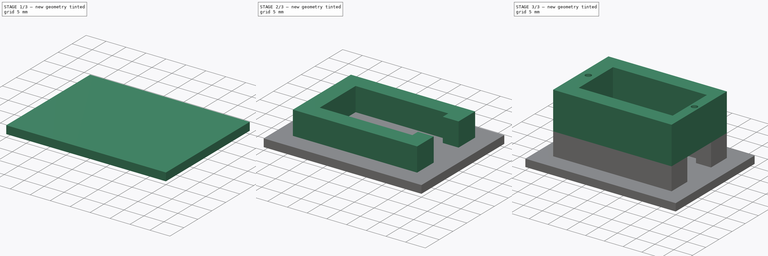
[diagram: build sequence overview — one tinted view per stage of 3, left to right]
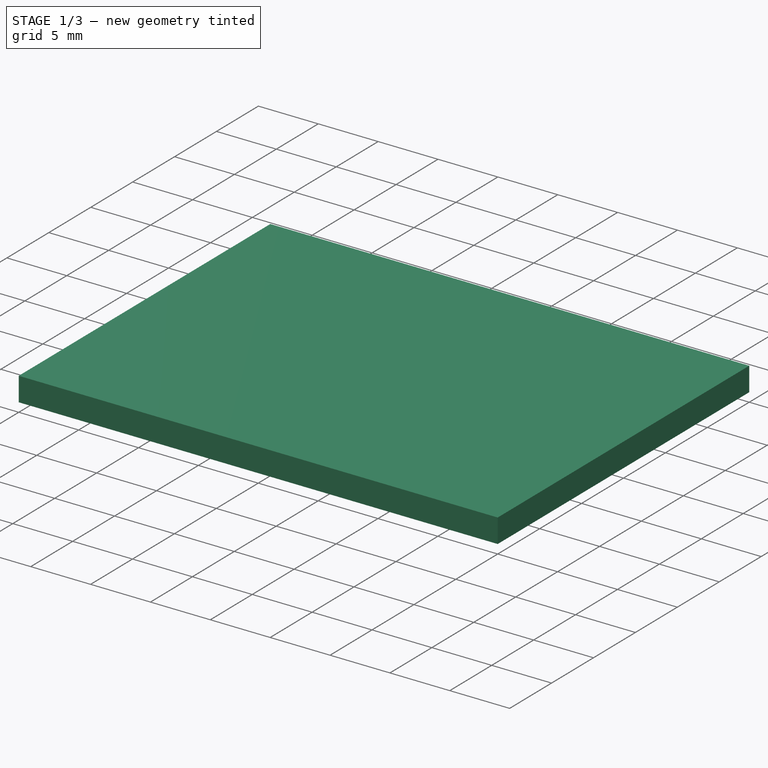
[diagram: stage 1 of 3 — iso view after this stage's code; geometry added in this stage tinted green]
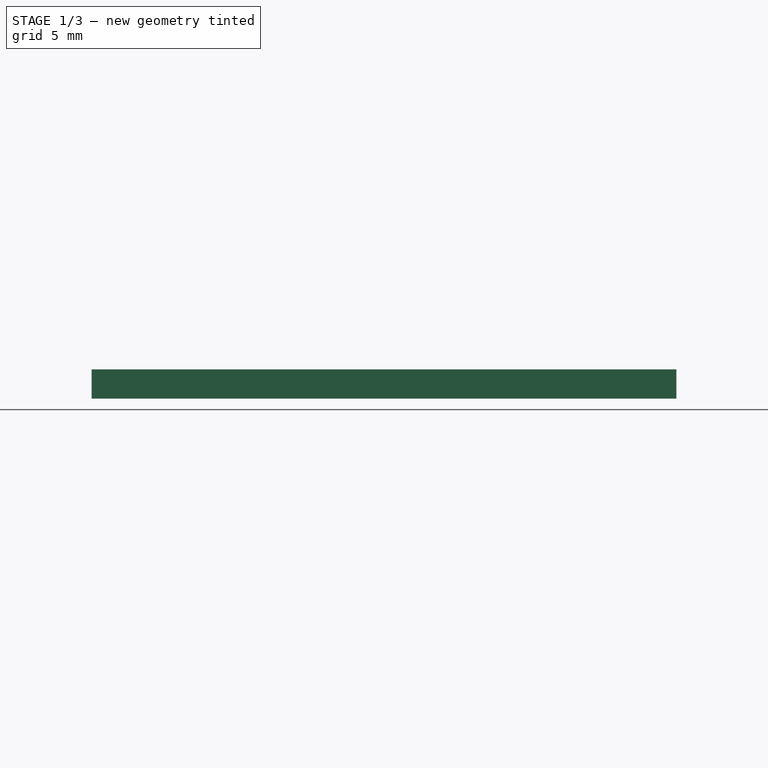
[diagram: stage 1 of 3 — front view after this stage's code; geometry added in this stage tinted green]
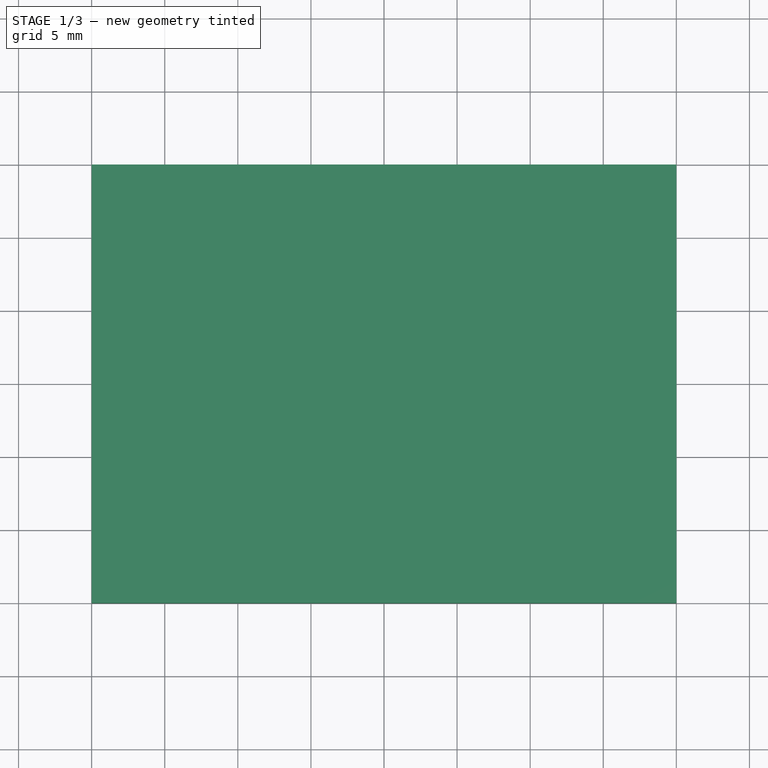
[diagram: stage 1 of 3 — top view after this stage's code; geometry added in this stage tinted green]
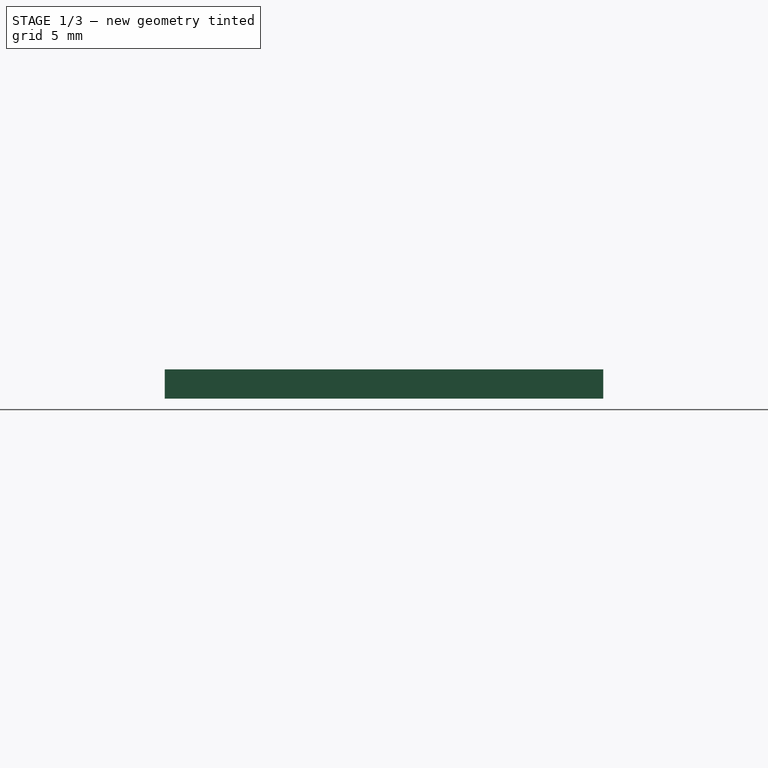
[diagram: stage 1 of 3 — right view after this stage's code; geometry added in this stage tinted green]
FCSTD DOCUMENT  (FreeCAD 0.17R13541 (Git))
Label: ServoMountCopy
License: All rights reserved
LicenseURL: http://en.wikipedia.org/wiki/All_rights_reserved
objects: Sketcher::SketchObject×3, PartDesign::Pad×2, Part::Box×1, PartDesign::FeatureBase×1, PartDesign::Pocket×1, PartDesign::Body×1
note: 12 computed .brp shape members not serialized (recipe doc carries the construction recipe); baked Part::Feature solids carry a one-line shape summary decoded from their .brp

FEATURE [Part::Box] Box  label="Cube"
  AttacherType = Attacher::AttachEngine3D
  Height = 2
  Length = 40
  Width = 30
FEATURE [PartDesign::FeatureBase] BaseFeature
  BaseFeature = -> Box
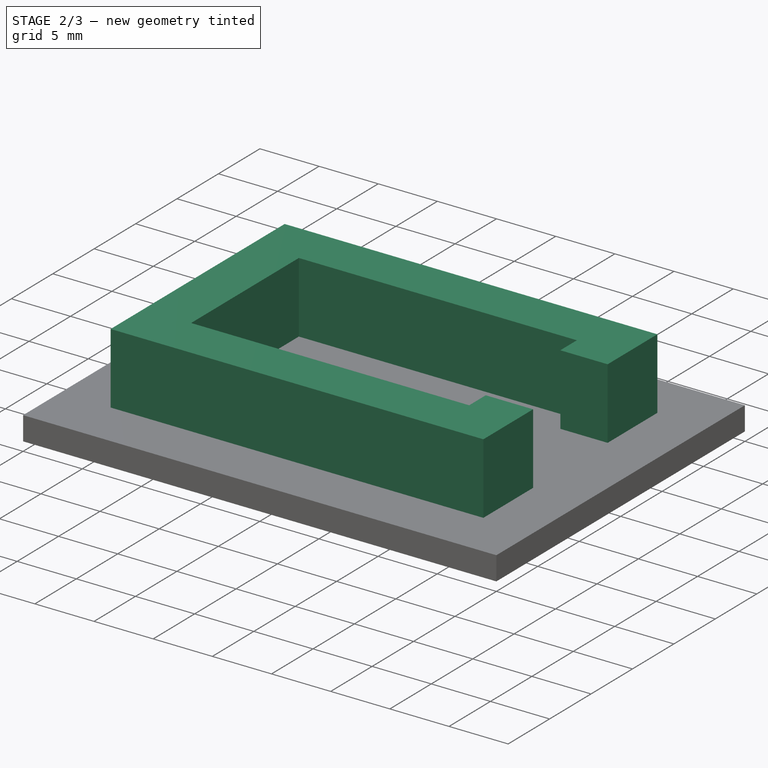
[diagram: stage 2 of 3 — iso view after this stage's code; geometry added in this stage tinted green]
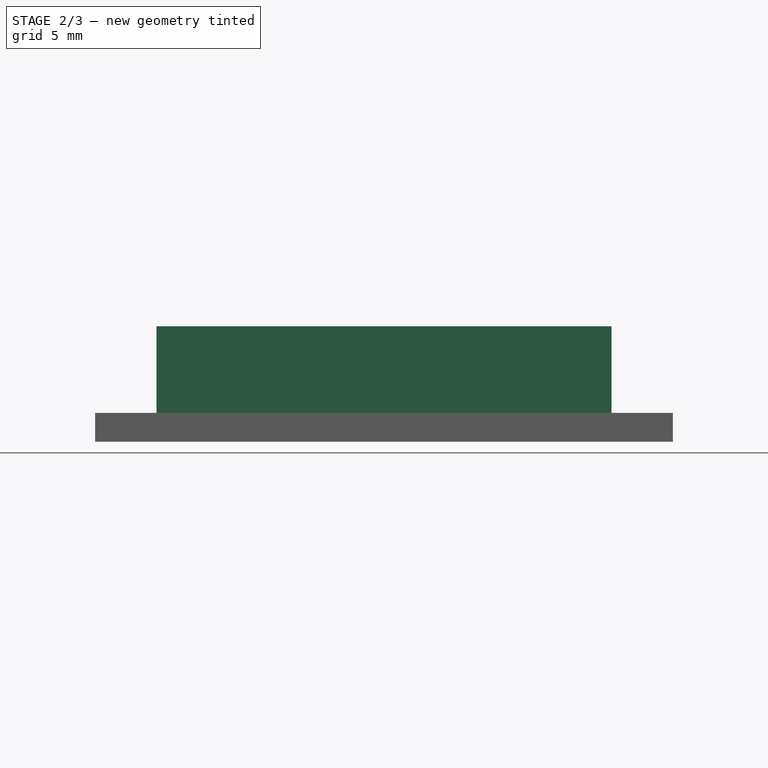
[diagram: stage 2 of 3 — front view after this stage's code; geometry added in this stage tinted green]
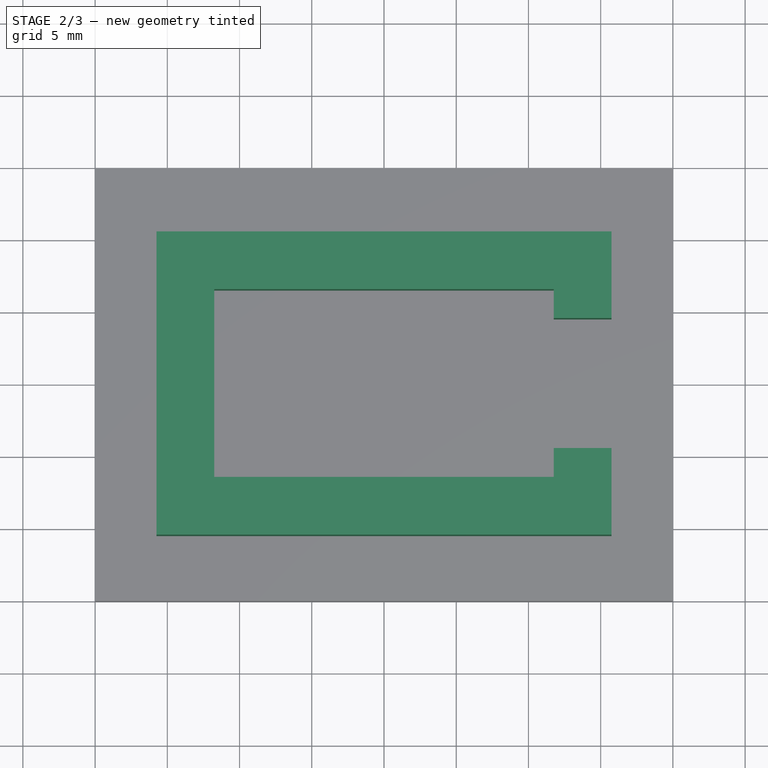
[diagram: stage 2 of 3 — top view after this stage's code; geometry added in this stage tinted green]
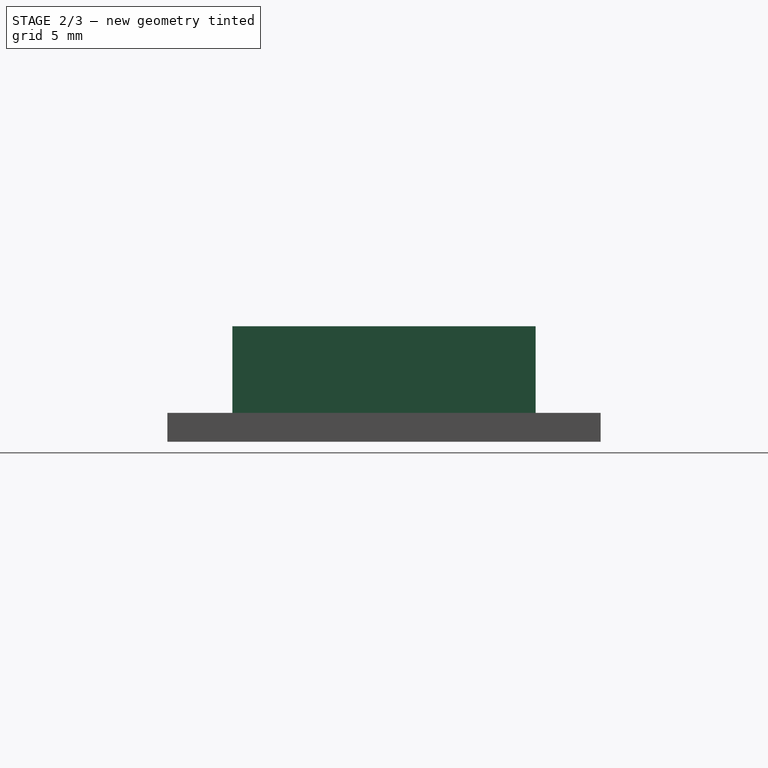
[diagram: stage 2 of 3 — right view after this stage's code; geometry added in this stage tinted green]
FEATURE [Sketcher::SketchObject] Sketch
  ExternalGeometry = -> [BaseFeature]
  MapMode = 5
  Placement = pos=(0,0,2) rot=(0,0,1;0rad)
  Support = -> [BaseFeature]
  sketch-geometry (16):
    g0: LineSegment StartX=35.75 StartY=19.5 StartZ=0 EndX=35.75 EndY=25.5 EndZ=0
    g1: LineSegment StartX=35.75 StartY=25.5 StartZ=0 EndX=4.25 EndY=25.5 EndZ=0
    g2: LineSegment StartX=4.25 StartY=25.5 StartZ=0 EndX=4.25 EndY=4.5 EndZ=0
    g3: LineSegment StartX=4.25 StartY=4.5 StartZ=0 EndX=35.75 EndY=4.5 EndZ=0
    g4: LineSegment StartX=35.75 StartY=4.5 StartZ=0 EndX=35.75 EndY=10.5 EndZ=0
    g5: LineSegment StartX=35.75 StartY=10.5 StartZ=0 EndX=31.75 EndY=10.5 EndZ=0
    g6: LineSegment StartX=31.75 StartY=10.5 StartZ=0 EndX=31.75 EndY=8.5 EndZ=0
    g7: LineSegment StartX=31.75 StartY=8.5 StartZ=0 EndX=8.25 EndY=8.5 EndZ=0
    g8: LineSegment StartX=8.25 StartY=8.5 StartZ=0 EndX=8.25 EndY=21.5 EndZ=0
    g9: LineSegment StartX=8.25 StartY=21.5 StartZ=0 EndX=31.75 EndY=21.5 EndZ=0
    g10: LineSegment StartX=31.75 StartY=21.5 StartZ=0 EndX=31.75 EndY=19.5 EndZ=0
    g11: LineSegment StartX=31.75 StartY=19.5 StartZ=0 EndX=35.75 EndY=19.5 EndZ=0
    g12: GeomPoint X=0 Y=15 Z=0
    g13: GeomPoint X=20 Y=0 Z=0
    g14: GeomPoint X=4.25 Y=15 Z=0
    g15: GeomPoint X=20 Y=4.5 Z=0
  constraints (42):
    c: Coincident(g0,g1)
    c: Horizontal(g1)
    c: Coincident(g1,g2)
    c: Coincident(g2,g3)
    c: Horizontal(g3)
    c: Coincident(g3,g4)
    c: Vertical(g4)
    c: Coincident(g4,g5)
    c: Horizontal(g5)
    c: Coincident(g5,g6)
    c: Coincident(g6,g7)
    c: Horizontal(g7)
    c: Coincident(g7,g8)
    c: Coincident(g8,g9)
    c: Coincident(g9,g10)
    c: Coincident(g10,g11)
    c: Coincident(g11,g0)
    c: Equal(g1,g3)
    c: Equal(g9,g7)
    c: Equal(g10,g6)
    c: Equal(g11,g5)
    c: Equal(g0,g4)
    c: Horizontal(g9)
    c: Vertical(g8)
    c: Vertical(g2)
    c: Horizontal(g11)
    c: Vertical(g6)
    c: Vertical(g10)
    c: DistanceY(g8,g1) = 4
    c: DistanceX(g1,g8) = 4
    c: DistanceX(g11,g11) = 4
    c: Distance(g10,g5) = 9
    c: Distance(g8) = 13
    c: Distance(g9) = 23.5
    c: Symmetric(g-1,g-4,g13)
    c: Symmetric(g-3,g-1,g12)
    c: PointOnObject(g14,g2)
    c: PointOnObject(g15,g3)
    c: Symmetric(g1,g2,g14)
    c: Symmetric(g3,g2,g15)
    c: Vertical(g15,g13)
    c: Horizontal(g14,g12)
FEATURE [PartDesign::Pad] Pad
  BaseFeature = -> BaseFeature
  Length = 6
  Length2 = 100
  Profile = -> Sketch
  Type = 0
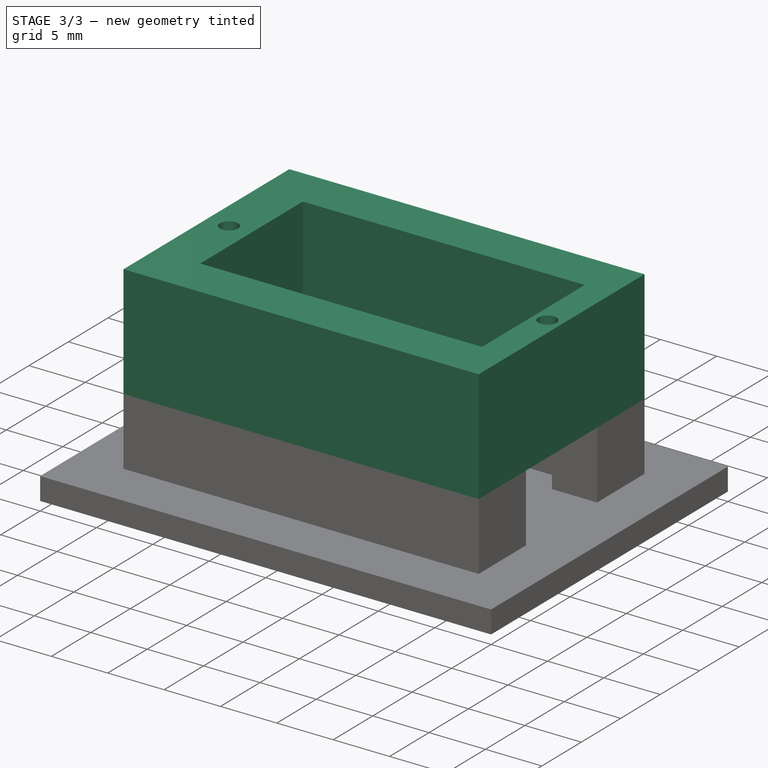
[diagram: stage 3 of 3 — iso view after this stage's code; geometry added in this stage tinted green]
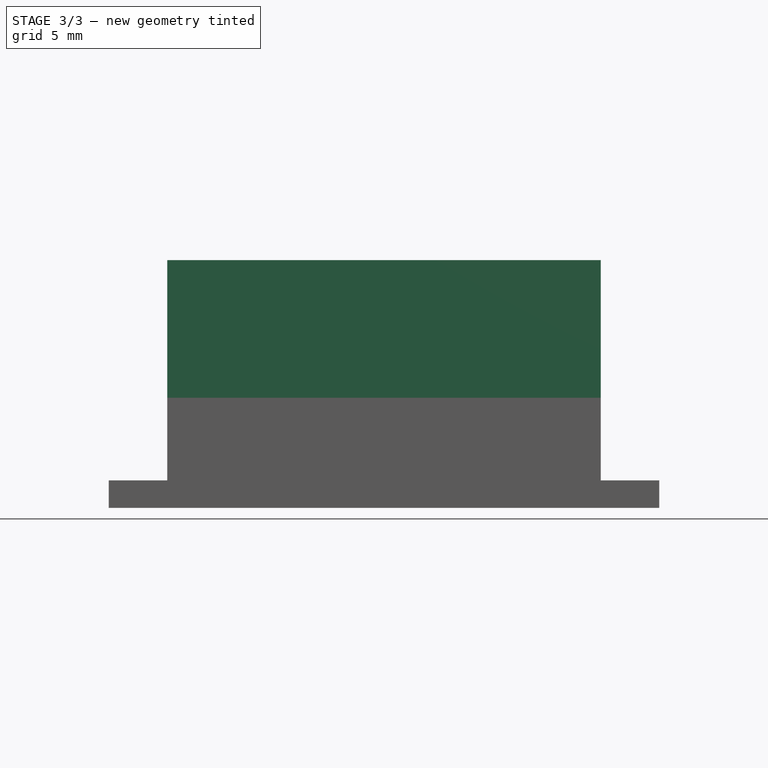
[diagram: stage 3 of 3 — front view after this stage's code; geometry added in this stage tinted green]
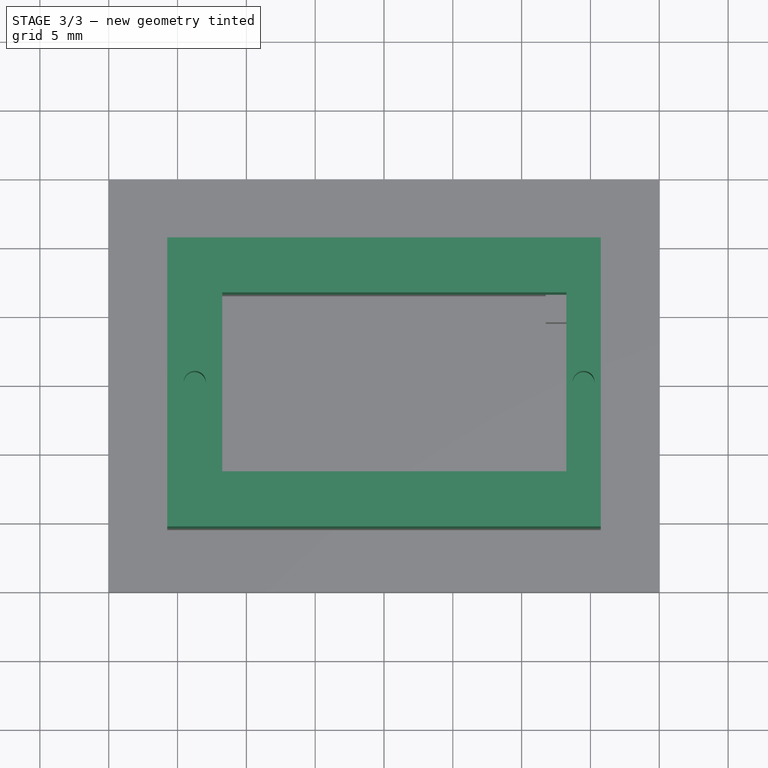
[diagram: stage 3 of 3 — top view after this stage's code; geometry added in this stage tinted green]
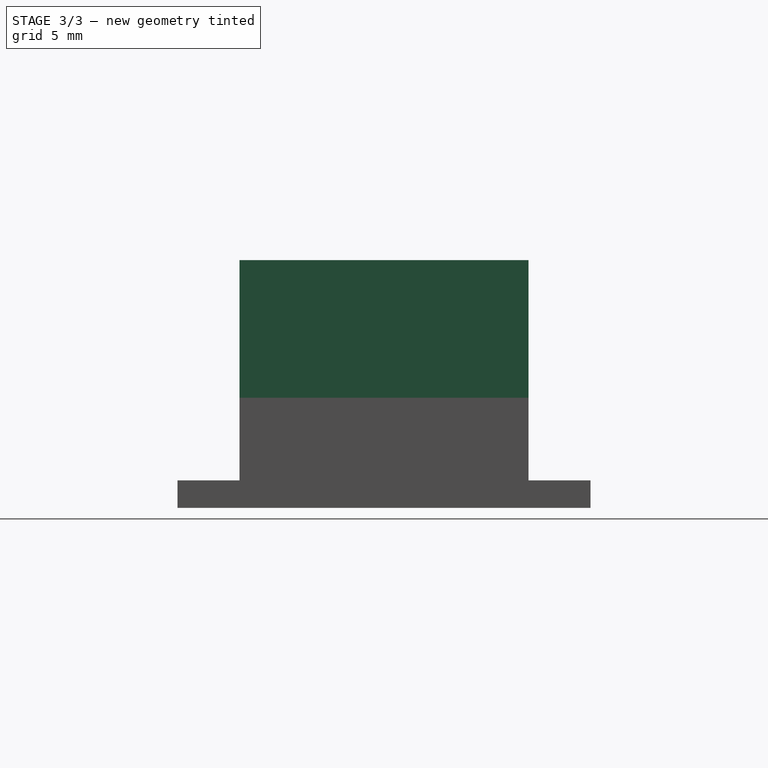
[diagram: stage 3 of 3 — right view after this stage's code; geometry added in this stage tinted green]
FEATURE [Sketcher::SketchObject] Sketch001
  ExternalGeometry = -> [Pad]
  MapMode = 5
  Placement = pos=(0,0,8) rot=(0,0,1;0rad)
  Support = -> [Pad]
  sketch-geometry (8):
    g0: LineSegment StartX=8.25 StartY=21.5 StartZ=0 EndX=33.25 EndY=21.5 EndZ=0
    g1: LineSegment StartX=33.25 StartY=21.5 StartZ=0 EndX=33.25 EndY=8.5 EndZ=0
    g2: LineSegment StartX=33.25 StartY=8.5 StartZ=0 EndX=8.25 EndY=8.5 EndZ=0
    g3: LineSegment StartX=8.25 StartY=8.5 StartZ=0 EndX=8.25 EndY=21.5 EndZ=0
    g4: LineSegment StartX=4.25 StartY=25.5 StartZ=0 EndX=35.75 EndY=25.5 EndZ=0
    g5: LineSegment StartX=35.75 StartY=25.5 StartZ=0 EndX=35.75 EndY=4.5 EndZ=0
    g6: LineSegment StartX=35.75 StartY=4.5 StartZ=0 EndX=4.25 EndY=4.5 EndZ=0
    g7: LineSegment StartX=4.25 StartY=4.5 StartZ=0 EndX=4.25 EndY=25.5 EndZ=0
  constraints (21):
    c: Coincident(g0,g1)
    c: Coincident(g1,g2)
    c: Coincident(g2,g3)
    c: Coincident(g3,g0)
    c: Horizontal(g0)
    c: Horizontal(g2)
    c: Vertical(g1)
    c: Vertical(g3)
    c: Coincident(g4,g5)
    c: Coincident(g5,g6)
    c: Coincident(g6,g7)
    c: Coincident(g7,g4)
    c: Horizontal(g4)
    c: Horizontal(g6)
    c: Vertical(g5)
    c: Vertical(g7)
    c: Coincident(g0,g-6)
    c: Coincident(g2,g-5)
    c: Coincident(g4,g-3)
    c: Coincident(g5,g-4)
    c: Distance(g0,g-6) = 1.5
FEATURE [PartDesign::Pad] Pad001
  BaseFeature = -> Pad
  Length = 10
  Length2 = 100
  Profile = -> Sketch001
  Type = 0
FEATURE [Sketcher::SketchObject] Sketch002
  ExternalGeometry = -> [Pad001]
  MapMode = 5
  Placement = pos=(0,0,18) rot=(0,0,1;0rad)
  Support = -> [Pad001]
  sketch-geometry (4):
    g0: Circle CenterX=6.25 CenterY=15 CenterZ=0 NormalX=0 NormalY=0 NormalZ=1 AngleXU=0 Radius=0.8
    g1: Circle CenterX=34.5 CenterY=15 CenterZ=0 NormalX=0 NormalY=0 NormalZ=1 AngleXU=0 Radius=0.8
    g2: LineSegment [constr] StartX=4.25 StartY=15 StartZ=0 EndX=8.25 EndY=15 EndZ=0
    g3: LineSegment [constr] StartX=33.25 StartY=15 StartZ=0 EndX=35.75 EndY=15 EndZ=0
  constraints (9):
    c: Radius(g1) = 0.8
    c: Radius(g0) = 0.8
    c: Horizontal(g2)
    c: Symmetric(g-4,g-4,g2)
    c: Symmetric(g-3,g-3,g2)
    c: Symmetric(g-6,g-6,g3)
    c: Symmetric(g-5,g-5,g3)
    c: Symmetric(g2,g2,g0)
    c: Symmetric(g3,g3,g1)
FEATURE [PartDesign::Pocket] Pocket
  BaseFeature = -> Pad001
  Length = 6
  Length2 = 100
  Profile = -> Sketch002
  Type = 0
FEATURE [PartDesign::Body] Body
  BaseFeature = -> Box
  Group = -> [BaseFeature,Sketch,Pad,Sketch001,Pad001,Sketch002,Pocket]
  Origin = -> Origin
  Tip = -> Pocket
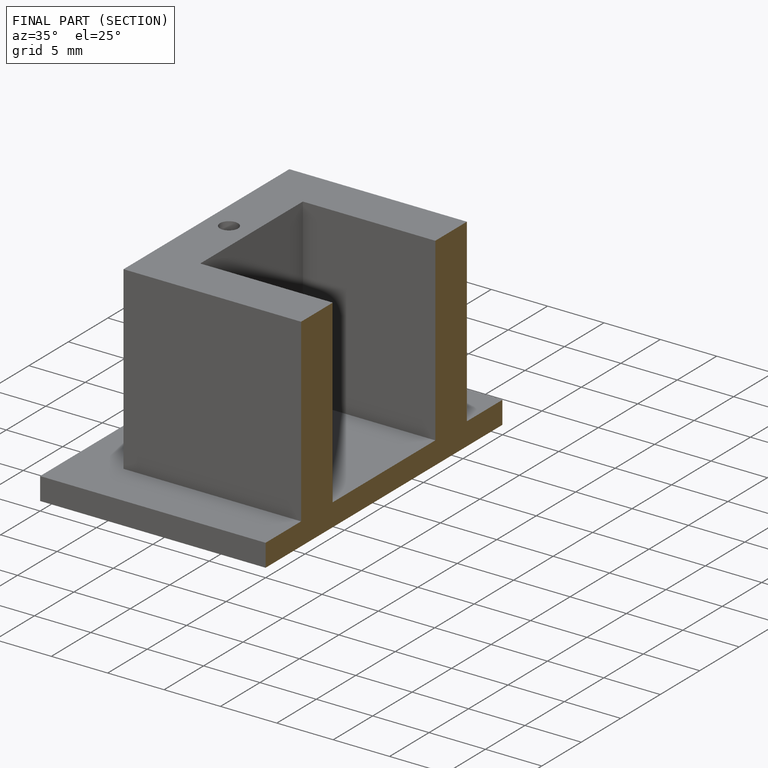
[diagram: finished part — half-section view (interior)]
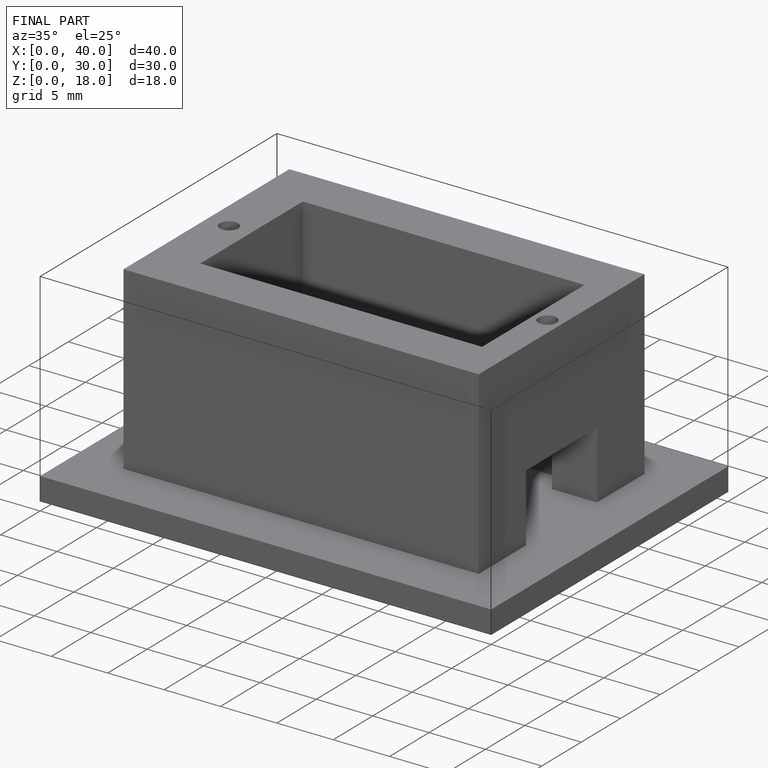
[diagram: finished part — iso view with bounding-box wireframe]
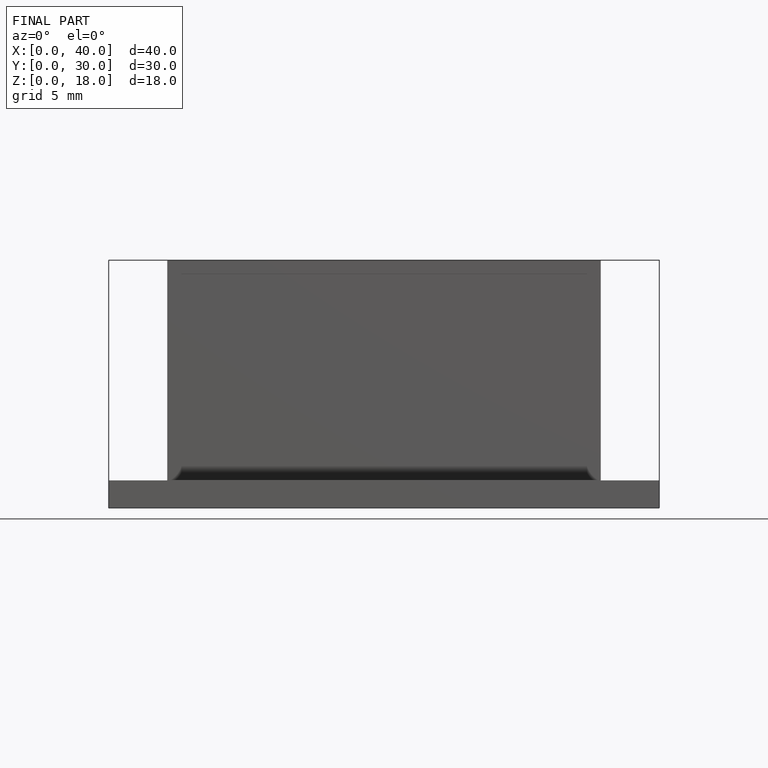
[diagram: finished part — front view with bounding-box wireframe]
